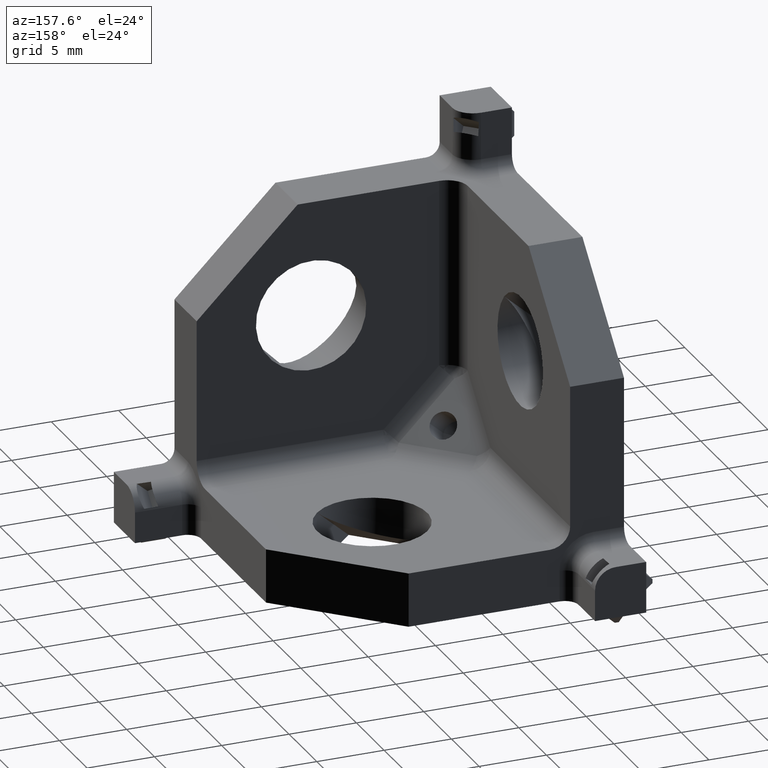
[diagram: clean part render]
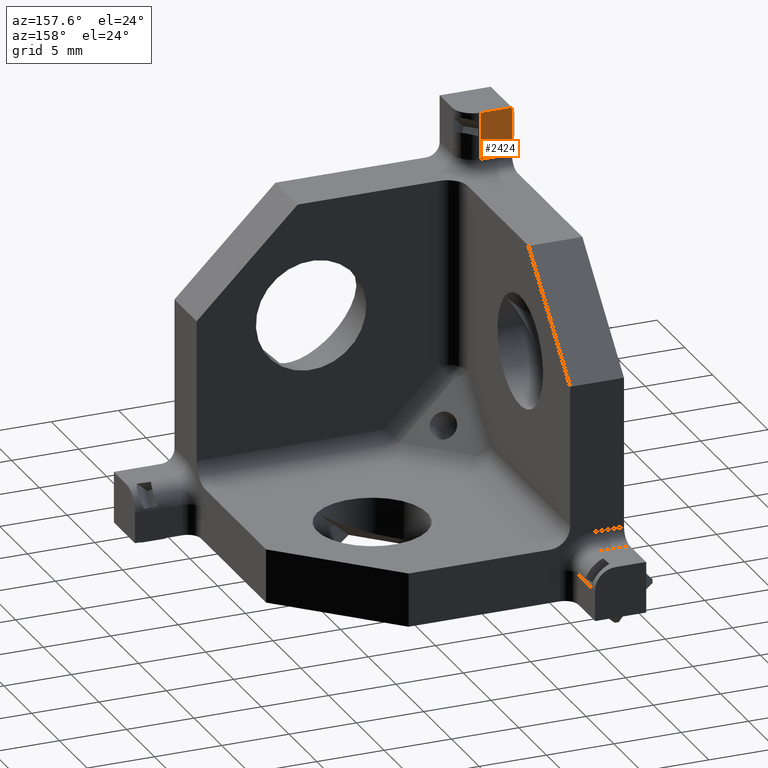
[diagram: same view with one face highlighted and labeled with its STEP entity id]
A machine part, auxiliary view. The second image highlights one B-rep face of the part: STEP entity #2424.
In plain terms, the highlighted planar face has unit normal (0, -1, 0).
Its self-contained STEP definition (entity closure, byte-faithful):
#67=PLANE('',#2632);
#226=FACE_OUTER_BOUND('',#385,.T.);
#385=EDGE_LOOP('',(#1905,#1906,#1907,#1908));
#614=LINE('',#3625,#886);
#689=LINE('',#3810,#961);
#702=LINE('',#3840,#974);
#703=LINE('',#3841,#975);
#886=VECTOR('',#2876,1000.);
#961=VECTOR('',#3015,1000.);
#974=VECTOR('',#3046,1000.);
#975=VECTOR('',#3047,1000.);
#1168=VERTEX_POINT('',#3622);
#1169=VERTEX_POINT('',#3624);
#1247=VERTEX_POINT('',#3808);
#1255=VERTEX_POINT('',#3839);
#1404=EDGE_CURVE('',#1169,#1168,#614,.T.);
#1501=EDGE_CURVE('',#1168,#1247,#689,.T.);
#1517=EDGE_CURVE('',#1247,#1255,#702,.T.);
#1518=EDGE_CURVE('',#1255,#1169,#703,.T.);
#1905=ORIENTED_EDGE('',*,*,#1517,.T.);
#1906=ORIENTED_EDGE('',*,*,#1518,.T.);
#1907=ORIENTED_EDGE('',*,*,#1404,.T.);
#1908=ORIENTED_EDGE('',*,*,#1501,.T.);
#2424=ADVANCED_FACE('',(#226),#67,.F.);
#2632=AXIS2_PLACEMENT_3D('',#3838,#3044,#3045);
#2876=DIRECTION('',(0.,0.,1.));
#3015=DIRECTION('',(1.,0.,0.));
#3044=DIRECTION('center_axis',(0.,-1.,0.));
#3045=DIRECTION('ref_axis',(0.,0.,-1.));
#3046=DIRECTION('',(0.,0.,-1.));
#3047=DIRECTION('',(-1.,0.,0.));
#3622=CARTESIAN_POINT('',(-14.,-10.2,14.));
#3624=CARTESIAN_POINT('',(-14.,-10.2,10.5));
#3625=CARTESIAN_POINT('',(-14.,-10.2,9.5));
#3808=CARTESIAN_POINT('',(-11.7,-10.2,14.));
#3810=CARTESIAN_POINT('',(0.,-10.2,14.));
#3838=CARTESIAN_POINT('Origin',(0.,-10.2,9.5));
#3839=CARTESIAN_POINT('',(-11.7,-10.2,10.5));
#3840=CARTESIAN_POINT('',(-11.7,-10.2,9.5));
#3841=CARTESIAN_POINT('',(0.,-10.2,10.5));